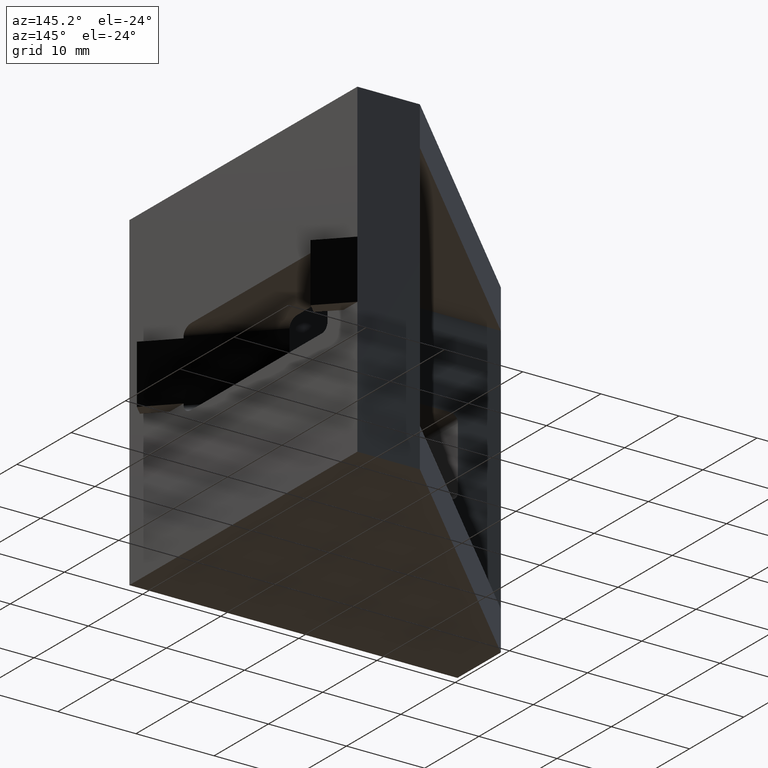
[diagram: clean part render]
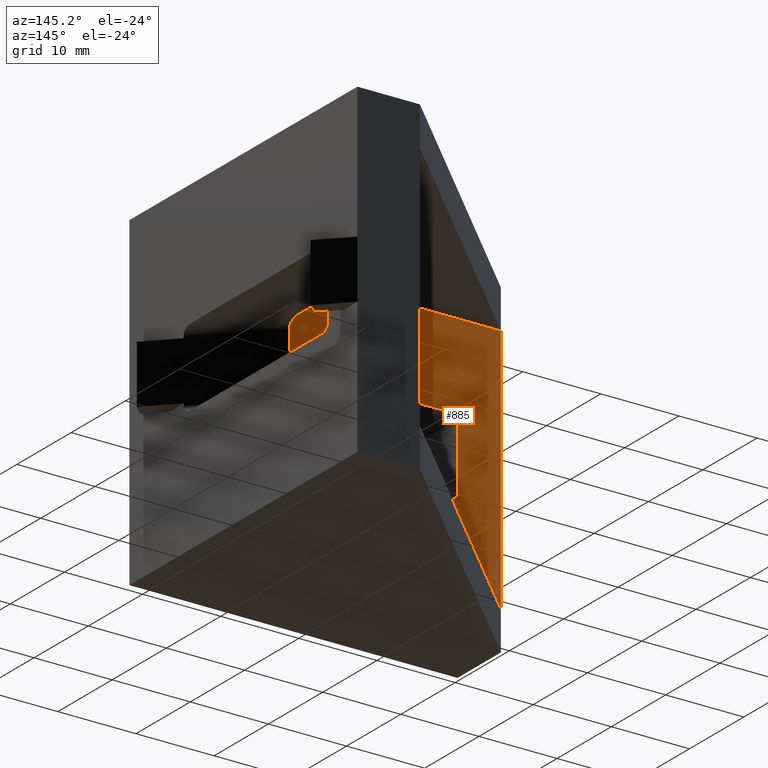
[diagram: same view with one face highlighted and labeled with its STEP entity id]
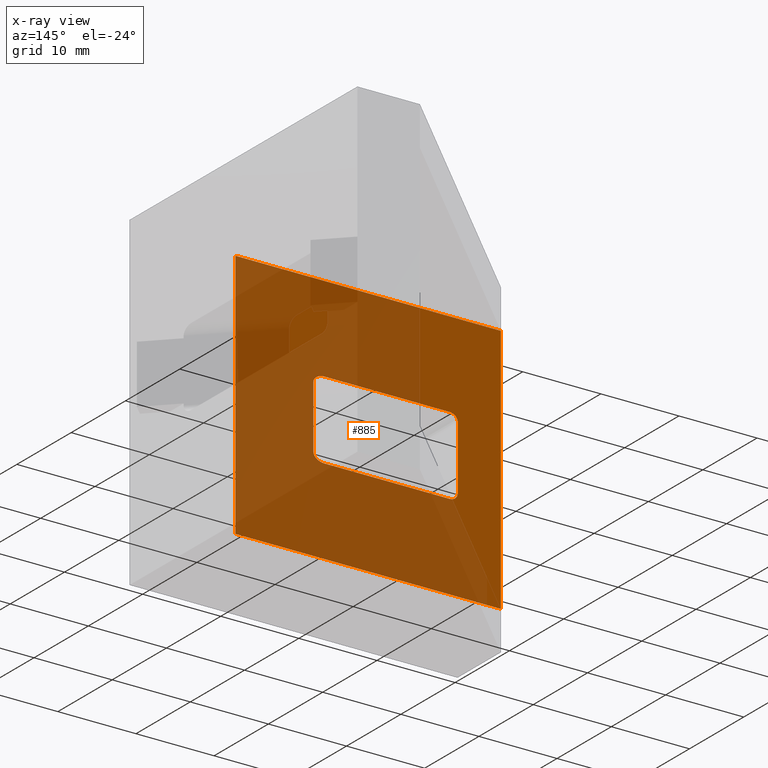
[diagram: x-ray of the same camera — body ghosted, the highlighted face saturated]
A machine part, auxiliary view. The second image highlights one B-rep face of the part: STEP entity #885.
The next image is the same camera in x-ray: the body ghosted, the highlighted face saturated — about 75% of this face is hidden behind the body in this view.
In plain terms, the highlighted planar face has unit normal (-0, 1, 0).
Its self-contained STEP definition (entity closure, byte-faithful):
#18=FACE_BOUND('',#155,.T.);
#23=CIRCLE('',#913,1.);
#25=CIRCLE('',#920,1.);
#59=PLANE('',#949);
#105=FACE_OUTER_BOUND('',#154,.T.);
#154=EDGE_LOOP('',(#797,#798,#799,#800));
#155=EDGE_LOOP('',(#801,#802,#803,#804,#805,#806,#807,#808));
#177=LINE('',#1246,#285);
#182=LINE('',#1261,#290);
#188=LINE('',#1279,#296);
#242=LINE('',#1389,#350);
#252=LINE('',#1407,#360);
#258=LINE('',#1419,#366);
#261=LINE('',#1425,#369);
#262=LINE('',#1426,#370);
#285=VECTOR('',#1011,16.0857864376269);
#290=VECTOR('',#1024,16.0857864376269);
#296=VECTOR('',#1044,8.);
#350=VECTOR('',#1138,8.);
#360=VECTOR('',#1154,34.);
#366=VECTOR('',#1166,32.);
#369=VECTOR('',#1171,32.);
#370=VECTOR('',#1172,34.);
#381=ELLIPSE('',#909,1.4142135623731,1.);
#384=ELLIPSE('',#918,1.4142135623731,1.);
#401=VERTEX_POINT('',#1236);
#402=VERTEX_POINT('',#1237);
#405=VERTEX_POINT('',#1245);
#407=VERTEX_POINT('',#1251);
#408=VERTEX_POINT('',#1252);
#411=VERTEX_POINT('',#1260);
#414=VERTEX_POINT('',#1268);
#415=VERTEX_POINT('',#1272);
#456=VERTEX_POINT('',#1403);
#457=VERTEX_POINT('',#1405);
#460=VERTEX_POINT('',#1418);
#462=VERTEX_POINT('',#1424);
#487=EDGE_CURVE('',#401,#402,#381,.T.);
#491=EDGE_CURVE('',#405,#402,#177,.T.);
#494=EDGE_CURVE('',#407,#408,#23,.T.);
#498=EDGE_CURVE('',#411,#408,#182,.T.);
#502=EDGE_CURVE('',#411,#414,#384,.T.);
#504=EDGE_CURVE('',#405,#415,#25,.T.);
#508=EDGE_CURVE('',#407,#415,#188,.T.);
#562=EDGE_CURVE('',#401,#414,#242,.T.);
#572=EDGE_CURVE('',#456,#457,#252,.T.);
#578=EDGE_CURVE('',#460,#456,#258,.T.);
#581=EDGE_CURVE('',#462,#457,#261,.T.);
#582=EDGE_CURVE('',#462,#460,#262,.T.);
#797=ORIENTED_EDGE('',*,*,#572,.T.);
#798=ORIENTED_EDGE('',*,*,#581,.F.);
#799=ORIENTED_EDGE('',*,*,#582,.T.);
#800=ORIENTED_EDGE('',*,*,#578,.T.);
#801=ORIENTED_EDGE('',*,*,#562,.T.);
#802=ORIENTED_EDGE('',*,*,#502,.F.);
#803=ORIENTED_EDGE('',*,*,#498,.T.);
#804=ORIENTED_EDGE('',*,*,#494,.F.);
#805=ORIENTED_EDGE('',*,*,#508,.T.);
#806=ORIENTED_EDGE('',*,*,#504,.F.);
#807=ORIENTED_EDGE('',*,*,#491,.T.);
#808=ORIENTED_EDGE('',*,*,#487,.F.);
#885=ADVANCED_FACE('',(#105,#18),#59,.T.);
#909=AXIS2_PLACEMENT_3D('',#1238,#1003,#1004);
#913=AXIS2_PLACEMENT_3D('',#1253,#1016,#1017);
#918=AXIS2_PLACEMENT_3D('',#1269,#1031,#1032);
#920=AXIS2_PLACEMENT_3D('',#1273,#1036,#1037);
#949=AXIS2_PLACEMENT_3D('',#1423,#1169,#1170);
#1003=DIRECTION('center_axis',(-3.26536183713281E-16,1.,0.));
#1004=DIRECTION('ref_axis',(1.,3.12250225675825E-16,9.32242397343491E-16));
#1011=DIRECTION('',(1.,3.26536183713281E-16,7.20144664621723E-16));
#1016=DIRECTION('center_axis',(-3.26536183713281E-16,1.,0.));
#1017=DIRECTION('ref_axis',(-0.707106781186548,0.,0.707106781186547));
#1024=DIRECTION('',(-1.,-3.26536183713281E-16,-8.4016877539201E-16));
#1031=DIRECTION('center_axis',(-3.26536183713281E-16,1.,0.));
#1032=DIRECTION('ref_axis',(1.,3.12250225675825E-16,7.85046229341887E-16));
#1036=DIRECTION('center_axis',(-3.26536183713281E-16,1.,0.));
#1037=DIRECTION('ref_axis',(-0.707106781186548,0.,-0.707106781186548));
#1044=DIRECTION('',(0.,0.,-1.));
#1138=DIRECTION('',(0.,0.,1.));
#1154=DIRECTION('',(-1.,-3.26536183713281E-16,-9.37318210517957E-32));
#1166=DIRECTION('',(0.,0.,-1.));
#1169=DIRECTION('center_axis',(-3.26536183713281E-16,1.,0.));
#1170=DIRECTION('ref_axis',(-1.,-3.5527136788005E-16,0.));
#1171=DIRECTION('',(0.,0.,-1.));
#1172=DIRECTION('',(1.,3.26536183713281E-16,-1.74627545648522E-31));
#1236=CARTESIAN_POINT('',(3.00000000000004,-13.,-3.99999999999999));
#1237=CARTESIAN_POINT('',(1.58578643762694,-13.,-4.99999999999999));
#1238=CARTESIAN_POINT('Origin',(1.58578643762694,-13.,-3.99999999999999));
#1245=CARTESIAN_POINT('',(-14.5,-13.,-5.));
#1246=CARTESIAN_POINT('',(-1.24999999999997,-13.,-4.99999999999999));
#1251=CARTESIAN_POINT('',(-15.5,-13.,4.));
#1252=CARTESIAN_POINT('',(-14.5,-13.,5.));
#1253=CARTESIAN_POINT('Origin',(-14.5,-13.,4.));
#1260=CARTESIAN_POINT('',(1.58578643762694,-13.,5.00000000000001));
#1261=CARTESIAN_POINT('',(8.00000000000002,-13.,5.00000000000002));
#1268=CARTESIAN_POINT('',(3.00000000000004,-13.,4.00000000000001));
#1269=CARTESIAN_POINT('Origin',(1.58578643762694,-13.,4.00000000000001));
#1272=CARTESIAN_POINT('',(-15.5,-13.,-4.));
#1273=CARTESIAN_POINT('Origin',(-14.5,-13.,-4.));
#1279=CARTESIAN_POINT('',(-15.5,-13.,2.5));
#1389=CARTESIAN_POINT('',(3.00000000000004,-13.,-2.49999999999999));
#1403=CARTESIAN_POINT('',(13.,-13.,-16.));
#1405=CARTESIAN_POINT('',(-21.,-13.,-16.));
#1407=CARTESIAN_POINT('',(11.7594974781837,-13.,-16.));
#1418=CARTESIAN_POINT('',(13.,-13.,16.));
#1419=CARTESIAN_POINT('',(13.,-13.,0.));
#1423=CARTESIAN_POINT('Origin',(13.,-13.,0.));
#1424=CARTESIAN_POINT('',(-21.,-13.,16.));
#1425=CARTESIAN_POINT('',(-21.,-13.,0.));
#1426=CARTESIAN_POINT('',(11.7594974781837,-13.,16.));